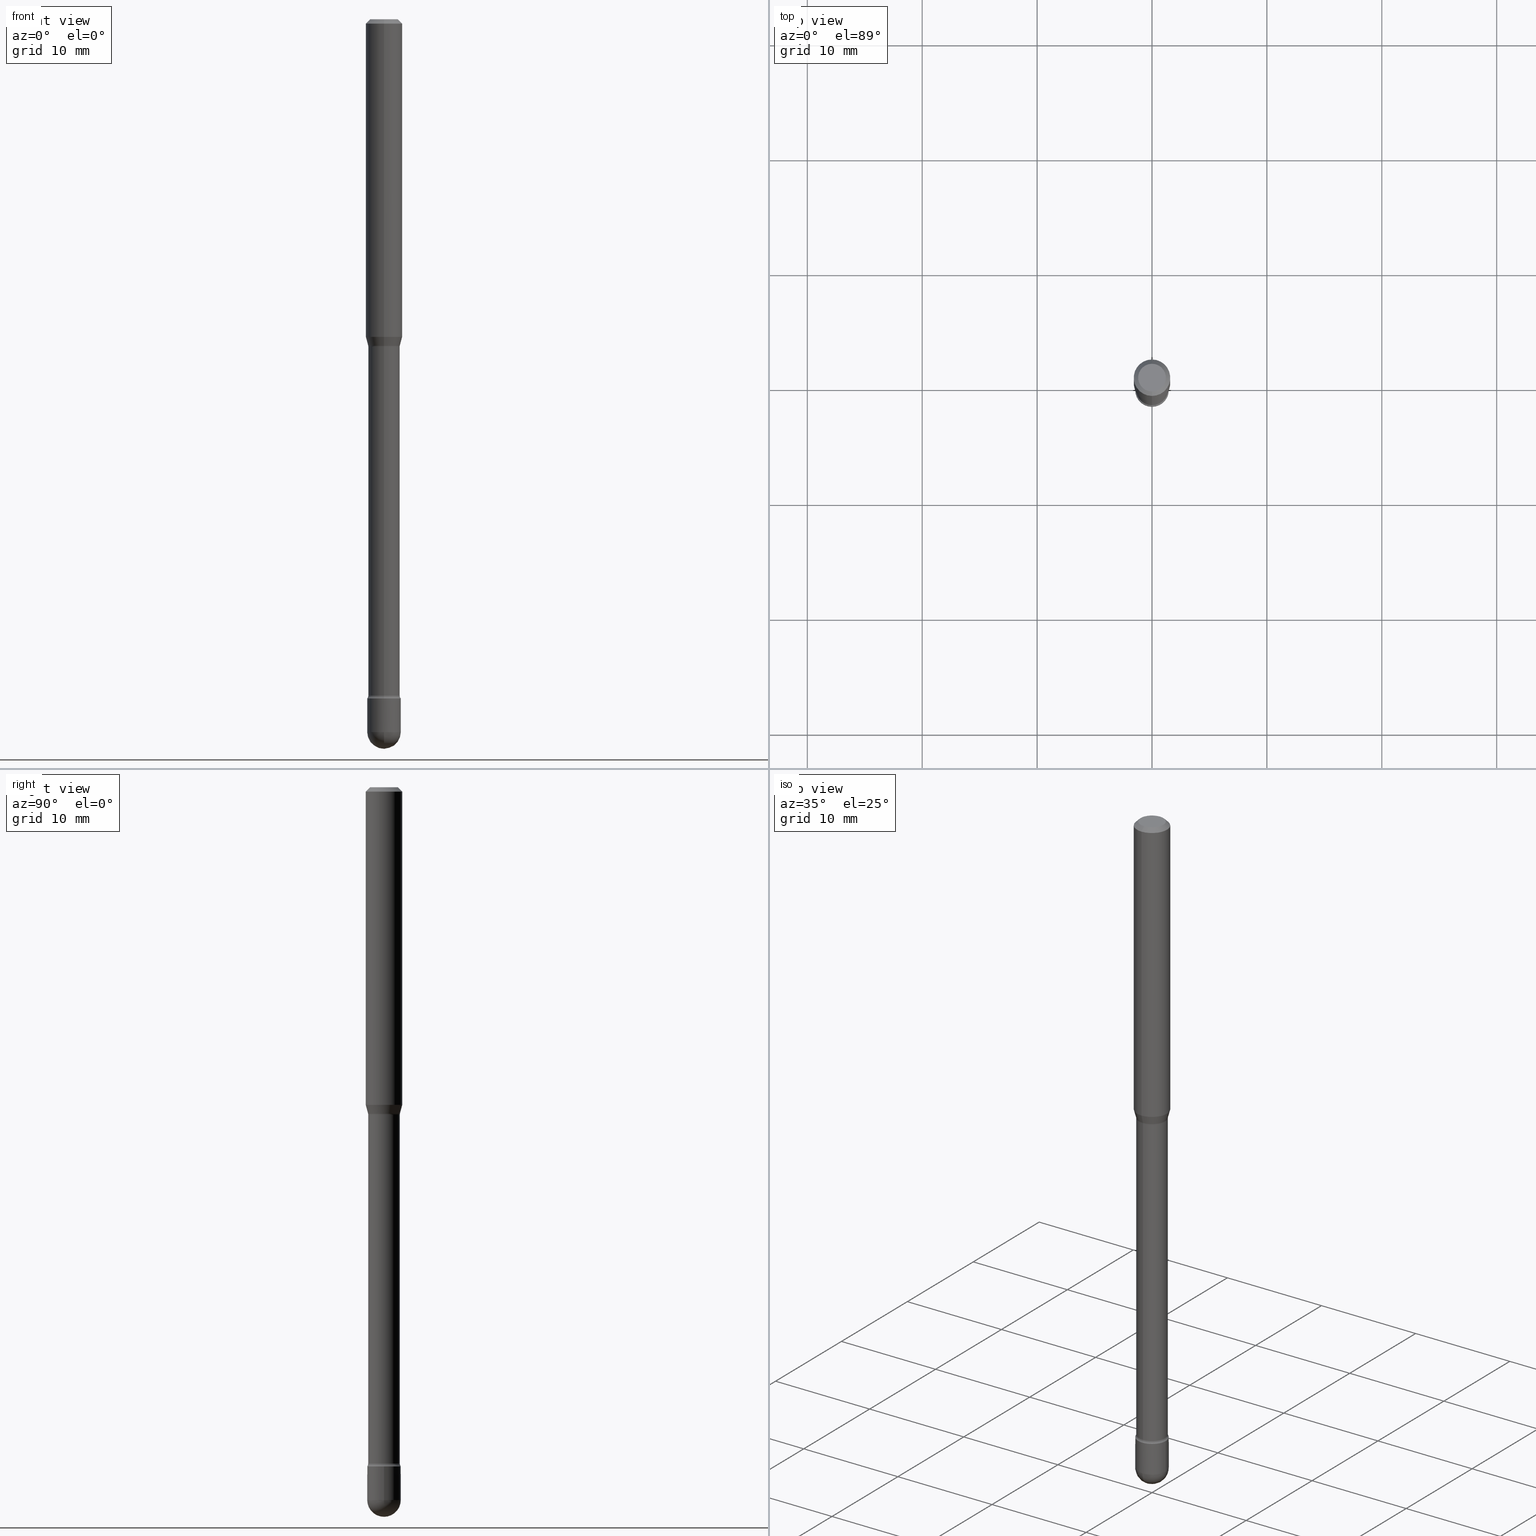
[diagram: canonical four-view strip — front | top / right | iso, engineering-drawing reading convention]
A machine part, canonical four-view strip (front | top / right | iso — engineering-drawing reading convention). The complete STEP part file that produces these views, byte-faithful:
ISO-10303-21;
HEADER;
FILE_DESCRIPTION (( 'STEP AP203' ),
    '1' );
FILE_NAME ('03911.STEP',
    '2024-04-09T21:07:01',
    ( '' ),
    ( '' ),
    'SwSTEP 2.0',
    'SolidWorks 2023',
    '' );
FILE_SCHEMA (( 'CONFIG_CONTROL_DESIGN' ));
ENDSEC;

DATA;
#1 = DIRECTION ( 'NONE',  ( -6.982962677686266711E-15, -1.000000000000000000, 0.000000000000000000 ) ) ;
#2 = DATE_TIME_ROLE ( 'classification_date' ) ;
#3 = APPLICATION_CONTEXT ( 'configuration controlled 3d designs of mechanical parts and assemblies' ) ;
#4 = VECTOR ( 'NONE', #488, 39.37007874015748854 ) ;
#5 = PERSON_AND_ORGANIZATION ( #285, #44 ) ;
#6 = COORDINATED_UNIVERSAL_TIME_OFFSET ( 5, 0, .BEHIND. ) ;
#7 = DIRECTION ( 'NONE',  ( -2.445497940252363543E-29, 3.491439617200668170E-15, 1.000000000000000000 ) ) ;
#8 = CARTESIAN_POINT ( 'NONE',  ( 2.743754344068948832E-29, -3.917354033082401123E-15, -1.121974787463811296 ) ) ;
#9 = EDGE_CURVE ( 'NONE', #376, #514, #35, .T. ) ;
#10 = CARTESIAN_POINT ( 'NONE',  ( 2.023764711495636617E-45, -2.888932392312249405E-31, -8.274901384956310238E-17 ) ) ;
#11 = CIRCLE ( 'NONE', #19, 0.05405000000000000082 ) ;
#12 = DIRECTION ( 'NONE',  ( -6.982962677686266711E-15, -1.000000000000000000, 3.491439617200668959E-15 ) ) ;
#13 = CARTESIAN_POINT ( 'NONE',  ( 5.667268681845476108E-29, -8.091164613728519785E-15, -2.317429341715430802 ) ) ;
#14 = ORIENTED_EDGE ( 'NONE', *, *, #108, .F. ) ;
#15 = DIRECTION ( 'NONE',  ( -2.445497940252363543E-29, 3.491439617200668170E-15, 1.000000000000000000 ) ) ;
#16 = ORIENTED_EDGE ( 'NONE', *, *, #229, .T. ) ;
#17 = EDGE_CURVE ( 'NONE', #114, #343, #173, .T. ) ;
#18 = VECTOR ( 'NONE', #231, 39.37007874015748143 ) ;
#19 = AXIS2_PLACEMENT_3D ( 'NONE', #417, #102, #235 ) ;
#20 = ORIENTED_EDGE ( 'NONE', *, *, #176, .T. ) ;
#21 = AXIS2_PLACEMENT_3D ( 'NONE', #161, #470, #347 ) ;
#22 = ORIENTED_EDGE ( 'NONE', *, *, #141, .T. ) ;
#23 = DIRECTION ( 'NONE',  ( -6.982962677686265922E-15, -1.000000000000000000, 2.503475335454092652E-15 ) ) ;
#24 = ORIENTED_EDGE ( 'NONE', *, *, #543, .T. ) ;
#25 = EDGE_LOOP ( 'NONE', ( #520, #346, #246, #245 ) ) ;
#26 = DIRECTION ( 'NONE',  ( -1.000000000000000000, 6.982962677686266711E-15, -4.883557194083112901E-29 ) ) ;
#27 = ORIENTED_EDGE ( 'NONE', *, *, #141, .F. ) ;
#28 = PERSON_AND_ORGANIZATION_ROLE ( 'creator' ) ;
#29 = ORIENTED_EDGE ( 'NONE', *, *, #187, .F. ) ;
#30 = CYLINDRICAL_SURFACE ( 'NONE', #288, 0.05405000000000007021 ) ;
#31 = CARTESIAN_POINT ( 'NONE',  ( 2.023764711495636617E-45, -2.888932392312249405E-31, -8.274901384956310238E-17 ) ) ;
#32 = EDGE_LOOP ( 'NONE', ( #125, #394, #559, #459 ) ) ;
#33 = AXIS2_PLACEMENT_3D ( 'NONE', #174, #489, #563 ) ;
#34 = CC_DESIGN_APPROVAL ( #330, ( #371 ) ) ;
#35 = CIRCLE ( 'NONE', #103, 0.06250000000000000000 ) ;
#36 = ORIENTED_EDGE ( 'NONE', *, *, #176, .F. ) ;
#37 = CYLINDRICAL_SURFACE ( 'NONE', #434, 0.05750000000000000250 ) ;
#38 = PLANE ( 'NONE',  #277 ) ;
#39 = ORIENTED_EDGE ( 'NONE', *, *, #454, .F. ) ;
#40 = EDGE_CURVE ( 'NONE', #190, #114, #441, .T. ) ;
#41 = CARTESIAN_POINT ( 'NONE',  ( 3.316907271900976096E-16, 0.04749999999999999362, 3.181881070380980226E-17 ) ) ;
#42 = DIRECTION ( 'NONE',  ( -1.000000000000000000, 6.982962677686265922E-15, -4.883557194083112340E-29 ) ) ;
#43 = AXIS2_PLACEMENT_3D ( 'NONE', #446, #265, #445 ) ;
#44 = ORGANIZATION ( 'UNSPECIFIED', 'UNSPECIFIED', '' ) ;
#45 = CARTESIAN_POINT ( 'NONE',  ( 0.000000000000000000, 0.000000000000000000, 0.000000000000000000 ) ) ;
#46 = DIRECTION ( 'NONE',  ( 2.445497940252363824E-29, -3.491439617200667775E-15, -1.000000000000000000 ) ) ;
#47 = AXIS2_PLACEMENT_3D ( 'NONE', #335, #513, #194 ) ;
#48 =( GEOMETRIC_REPRESENTATION_CONTEXT ( 3 ) GLOBAL_UNCERTAINTY_ASSIGNED_CONTEXT ( ( #123 ) ) GLOBAL_UNIT_ASSIGNED_CONTEXT ( ( #532, #184, #321 ) ) REPRESENTATION_CONTEXT ( 'NONE', 'WORKASPACE' ) );
#49 = APPLICATION_CONTEXT ( 'configuration controlled 3d designs of mechanical parts and assemblies' ) ;
#50 = CARTESIAN_POINT ( 'NONE',  ( 3.668246910378565599E-31, -5.237159425801031048E-17, -0.01500000000000008271 ) ) ;
#51 = DIRECTION ( 'NONE',  ( 6.982962677686265922E-15, 1.000000000000000000, -3.483106191921935554E-15 ) ) ;
#52 = ADVANCED_FACE ( 'NONE', ( #342 ), #507, .T. ) ;
#53 = ADVANCED_FACE ( 'NONE', ( #333 ), #172, .F. ) ;
#54 = PLANE ( 'NONE',  #112 ) ;
#55 = DIRECTION ( 'NONE',  ( 1.000000000000000000, 0.000000000000000000, 0.000000000000000000 ) ) ;
#56 = CIRCLE ( 'NONE', #43, 0.05750000000000000250 ) ;
#57 = CARTESIAN_POINT ( 'NONE',  ( 4.364351673553919652E-16, 0.06249999999999995143, -0.01500000000000030129 ) ) ;
#58 = PERSON_AND_ORGANIZATION_ROLE ( 'design_owner' ) ;
#59 = EDGE_LOOP ( 'NONE', ( #385, #466, #14, #508, #505 ) ) ;
#60 = DIMENSIONAL_EXPONENTS ( 1.000000000000000000, 0.000000000000000000, 0.000000000000000000, 0.000000000000000000, 0.000000000000000000, 0.000000000000000000, 0.000000000000000000 ) ;
#61 = ORIENTED_EDGE ( 'NONE', *, *, #78, .F. ) ;
#62 = VECTOR ( 'NONE', #414, 39.37007874015748143 ) ;
#63 = CARTESIAN_POINT ( 'NONE',  ( -4.287811248607203282E-16, -0.06250000000000005551, -0.01499999999999986587 ) ) ;
#64 = DIRECTION ( 'NONE',  ( -2.445468806185136597E-29, 3.491481338843145583E-15, 1.000000000000000000 ) ) ;
#65 = DIRECTION ( 'NONE',  ( -2.445497940252363543E-29, 3.491439617200668170E-15, 1.000000000000000000 ) ) ;
#66 = EDGE_CURVE ( 'NONE', #239, #254, #357, .T. ) ;
#67 = CARTESIAN_POINT ( 'NONE',  ( 5.973057559107196227E-29, -8.527943170124383355E-15, -2.442499999999999893 ) ) ;
#68 = ORIENTED_EDGE ( 'NONE', *, *, #134, .F. ) ;
#69 = CARTESIAN_POINT ( 'NONE',  ( -4.364351673553916201E-16, -0.06250000000000000000, 6.962883749662878485E-16 ) ) ;
#70 = VERTEX_POINT ( 'NONE', #171 ) ;
#71 = PRODUCT_RELATED_PRODUCT_CATEGORY ( 'detail', '', ( #313 ) ) ;
#72 = VERTEX_POINT ( 'NONE', #219 ) ;
#73 = CARTESIAN_POINT ( 'NONE',  ( -1.169113584055446105E-44, 1.669184350826100908E-30, 4.780733988912460139E-16 ) ) ;
#74 = CARTESIAN_POINT ( 'NONE',  ( 3.840629472727447874E-16, 0.04749999999999999362, -2.485923956665948360E-16 ) ) ;
#75 = EDGE_LOOP ( 'NONE', ( #282, #20, #418, #539 ) ) ;
#76 = CONICAL_SURFACE ( 'NONE', #447, 0.06250000000000000000, 0.7853981633974483900 ) ;
#77 = CONICAL_SURFACE ( 'NONE', #484, 0.05456111260566398613, 0.2617993877991491303 ) ;
#78 = EDGE_CURVE ( 'NONE', #287, #243, #352, .T. ) ;
#79 = DIRECTION ( 'NONE',  ( -2.445497940252363543E-29, 3.491439617200668170E-15, 1.000000000000000000 ) ) ;
#80 = EDGE_LOOP ( 'NONE', ( #304, #425 ) ) ;
#81 = DIRECTION ( 'NONE',  ( -6.982962677686266711E-15, -1.000000000000000000, 3.491439617200668959E-15 ) ) ;
#82 = CARTESIAN_POINT ( 'NONE',  ( -0.05750000000000000250, -7.917748049744133834E-15, -2.442499999999999893 ) ) ;
#83 = CIRCLE ( 'NONE', #521, 0.01499999999999999424 ) ;
#84 = VECTOR ( 'NONE', #121, 39.37007874015748143 ) ;
#85 = DIRECTION ( 'NONE',  ( -2.445497940252363543E-29, 3.491439617200668170E-15, 1.000000000000000000 ) ) ;
#86 = DIRECTION ( 'NONE',  ( -2.445497940252363824E-29, 3.491439617200667775E-15, 1.000000000000000000 ) ) ;
#87 = FACE_OUTER_BOUND ( 'NONE', #80, .T. ) ;
#88 = CALENDAR_DATE ( 2024, 9, 4 ) ;
#89 = AXIS2_PLACEMENT_3D ( 'NONE', #13, #140, #324 ) ;
#90 = EDGE_CURVE ( 'NONE', #281, #70, #204, .T. ) ;
#91 = CIRCLE ( 'NONE', #370, 0.05750000000000007189 ) ;
#92 = CARTESIAN_POINT ( 'NONE',  ( 3.840483486783346000E-16, 0.05405000000000007021, 2.893610875815497126E-16 ) ) ;
#93 = EDGE_CURVE ( 'NONE', #339, #254, #525, .T. ) ;
#94 = CARTESIAN_POINT ( 'NONE',  ( 5.667201165703240905E-29, -8.091261300686981315E-15, -2.317429341715430802 ) ) ;
#95 = CALENDAR_DATE ( 2024, 9, 4 ) ;
#96 = DIRECTION ( 'NONE',  ( -2.445497940252363824E-29, 3.491439617200667775E-15, 1.000000000000000000 ) ) ;
#97 = DIRECTION ( 'NONE',  ( 2.445497940252363543E-29, -3.491439617200668170E-15, -1.000000000000000000 ) ) ;
#98 = DIRECTION ( 'NONE',  ( -2.445497940252363543E-29, 3.491439617200668170E-15, 1.000000000000000000 ) ) ;
#99 = DIRECTION ( 'NONE',  ( -2.445468806185136597E-29, 3.491481338843145583E-15, 1.000000000000000000 ) ) ;
#100 = AXIS2_PLACEMENT_3D ( 'NONE', #10, #7, #12 ) ;
#101 = AXIS2_PLACEMENT_3D ( 'NONE', #124, #116, #422 ) ;
#102 = DIRECTION ( 'NONE',  ( -2.445497940252363543E-29, 3.491439617200668170E-15, 1.000000000000000000 ) ) ;
#103 = AXIS2_PLACEMENT_3D ( 'NONE', #107, #213, #196 ) ;
#104 = ORIENTED_EDGE ( 'NONE', *, *, #90, .T. ) ;
#105 = CARTESIAN_POINT ( 'NONE',  ( 2.743787031757833688E-29, -3.917307222451449411E-15, -1.121974787463811074 ) ) ;
#106 = ORIENTED_EDGE ( 'NONE', *, *, #93, .F. ) ;
#107 = CARTESIAN_POINT ( 'NONE',  ( 3.668246910378565599E-31, -5.237159425801031048E-17, -0.01500000000000008271 ) ) ;
#108 = EDGE_CURVE ( 'NONE', #254, #339, #56, .T. ) ;
#109 = ORIENTED_EDGE ( 'NONE', *, *, #443, .F. ) ;
#110 = ADVANCED_FACE ( 'NONE', ( #355 ), #129, .T. ) ;
#111 = CARTESIAN_POINT ( 'NONE',  ( 2.734292910132389622E-29, -3.903752456435094902E-15, -1.118092501787273374 ) ) ;
#112 = AXIS2_PLACEMENT_3D ( 'NONE', #226, #372, #533 ) ;
#113 = CARTESIAN_POINT ( 'NONE',  ( 4.906297590424068657E-16, 0.06904999999999206217, -2.317429341715430802 ) ) ;
#114 = VERTEX_POINT ( 'NONE', #82 ) ;
#115 = VERTEX_POINT ( 'NONE', #259 ) ;
#116 = DIRECTION ( 'NONE',  ( -2.445468806185136597E-29, 3.491481338843145583E-15, 1.000000000000000000 ) ) ;
#117 = ADVANCED_FACE ( 'NONE', ( #87 ), #127, .F. ) ;
#118 = DIRECTION ( 'NONE',  ( 6.982962677686266711E-15, 1.000000000000000000, -4.751039988981321814E-15 ) ) ;
#119 = ORIENTED_EDGE ( 'NONE', *, *, #329, .T. ) ;
#120 = CARTESIAN_POINT ( 'NONE',  ( -3.774291327288869168E-16, -0.05405000000000822341, -2.317429341715430358 ) ) ;
#121 = DIRECTION ( 'NONE',  ( -2.445497940252363824E-29, 3.491439617200667775E-15, 1.000000000000000000 ) ) ;
#122 = ORIENTED_EDGE ( 'NONE', *, *, #293, .T. ) ;
#123 = UNCERTAINTY_MEASURE_WITH_UNIT (LENGTH_MEASURE( 1.000000000000000082E-05 ), #532, 'distance_accuracy_value', 'NONE');
#124 = CARTESIAN_POINT ( 'NONE',  ( 0.000000000000000000, 0.000000000000000000, 0.000000000000000000 ) ) ;
#125 = ORIENTED_EDGE ( 'NONE', *, *, #424, .F. ) ;
#126 = CIRCLE ( 'NONE', #100, 0.04749999999999999362 ) ;
#127 = PLANE ( 'NONE',  #462 ) ;
#128 = DIRECTION ( 'NONE',  ( 1.000000000000000000, -6.982962677686273810E-15, 0.000000000000000000 ) ) ;
#129 = CYLINDRICAL_SURFACE ( 'NONE', #276, 0.06250000000000000000 ) ;
#130 = FACE_OUTER_BOUND ( 'NONE', #461, .T. ) ;
#131 = AXIS2_PLACEMENT_3D ( 'NONE', #8, #135, #485 ) ;
#132 = CC_DESIGN_SECURITY_CLASSIFICATION ( #448, ( #361 ) ) ;
#133 = DIRECTION ( 'NONE',  ( -6.982962677686265922E-15, -1.000000000000000000, 4.751039988981327336E-15 ) ) ;
#134 = EDGE_CURVE ( 'NONE', #70, #281, #369, .T. ) ;
#135 = DIRECTION ( 'NONE',  ( -2.445497940252363543E-29, 3.491439617200668170E-15, 1.000000000000000000 ) ) ;
#136 = AXIS2_PLACEMENT_3D ( 'NONE', #546, #397, #118 ) ;
#137 = CONICAL_SURFACE ( 'NONE', #252, 0.05456111260566398613, 0.2617993877991491303 ) ;
#138 = CARTESIAN_POINT ( 'NONE',  ( 2.661836887426760924E-29, -3.800306927401807110E-15, -1.088464170676043397 ) ) ;
#139 = LENGTH_MEASURE_WITH_UNIT ( LENGTH_MEASURE( 0.02539999999999999897 ), #233 );
#140 = DIRECTION ( 'NONE',  ( -2.445497940252363543E-29, 3.491439617200668170E-15, 1.000000000000000000 ) ) ;
#141 = EDGE_CURVE ( 'NONE', #72, #376, #306, .T. ) ;
#142 = CARTESIAN_POINT ( 'NONE',  ( 6.116130618544232584E-29, -8.725182487560315771E-15, -2.500000000000000000 ) ) ;
#143 = ORIENTED_EDGE ( 'NONE', *, *, #93, .T. ) ;
#144 = CARTESIAN_POINT ( 'NONE',  ( 0.05750000000000000250, -8.727830476773152219E-15, -2.442499999999999893 ) ) ;
#145 = ORIENTED_EDGE ( 'NONE', *, *, #312, .F. ) ;
#146 = DIRECTION ( 'NONE',  ( -6.982962677686265922E-15, -1.000000000000000000, 4.370956789862821150E-15 ) ) ;
#147 = DIRECTION ( 'NONE',  ( -2.445468806185136597E-29, 3.491481338843145583E-15, 1.000000000000000000 ) ) ;
#148 = EDGE_CURVE ( 'NONE', #514, #376, #192, .T. ) ;
#149 = ORIENTED_EDGE ( 'NONE', *, *, #443, .T. ) ;
#150 = CYLINDRICAL_SURFACE ( 'NONE', #47, 0.06250000000000000000 ) ;
#151 = EDGE_LOOP ( 'NONE', ( #160, #291, #122, #162 ) ) ;
#152 = EDGE_LOOP ( 'NONE', ( #242, #149, #104, #145 ) ) ;
#153 = AXIS2_PLACEMENT_3D ( 'NONE', #94, #15, #415 ) ;
#154 = DIRECTION ( 'NONE',  ( -7.105427357601000281E-15, -1.000000000000000000, 0.000000000000000000 ) ) ;
#155 = AXIS2_PLACEMENT_3D ( 'NONE', #215, #522, #128 ) ;
#156 = DIRECTION ( 'NONE',  ( 1.000000000000000000, -6.982962677686273810E-15, 0.000000000000000000 ) ) ;
#157 = VERTEX_POINT ( 'NONE', #142 ) ;
#158 = CARTESIAN_POINT ( 'NONE',  ( 5.973057559107196227E-29, -8.527943170124383355E-15, -2.442499999999999893 ) ) ;
#159 = ORIENTED_EDGE ( 'NONE', *, *, #365, .F. ) ;
#160 = ORIENTED_EDGE ( 'NONE', *, *, #402, .F. ) ;
#161 = CARTESIAN_POINT ( 'NONE',  ( 5.973057559107196227E-29, -8.527943170124383355E-15, -2.442499999999999893 ) ) ;
#162 = ORIENTED_EDGE ( 'NONE', *, *, #9, .T. ) ;
#163 = DESIGN_CONTEXT ( 'detailed design', #49, 'design' ) ;
#164 = AXIS2_PLACEMENT_3D ( 'NONE', #398, #311, #262 ) ;
#165 = LOCAL_TIME ( 17, 7, 1.000000000000000000, #309 ) ;
#166 = DIRECTION ( 'NONE',  ( -2.445468806185136877E-29, 3.491481338843145188E-15, 1.000000000000000000 ) ) ;
#167 = CARTESIAN_POINT ( 'NONE',  ( -0.05750000000000000250, 4.085620730620576246E-16, -2.828387676896570712E-30 ) ) ;
#168 = EDGE_CURVE ( 'NONE', #431, #115, #83, .T. ) ;
#169 = CARTESIAN_POINT ( 'NONE',  ( 0.05750000000000000250, -4.015203539669603161E-16, 2.803801646082662941E-30 ) ) ;
#170 = APPROVAL_ROLE ( '' ) ;
#171 = CARTESIAN_POINT ( 'NONE',  ( -4.015203539669034688E-16, -0.05750000000000813488, -2.326999999999999957 ) ) ;
#172 = TOROIDAL_SURFACE ( 'NONE', #131, 0.06905000000000000027, 0.01499999999999998904 ) ;
#173 = CIRCLE ( 'NONE', #501, 0.05750000000000000250 ) ;
#174 = CARTESIAN_POINT ( 'NONE',  ( 5.690673706967250550E-29, -8.124579989225955458E-15, -2.326999999999999957 ) ) ;
#175 = SECURITY_CLASSIFICATION_LEVEL ( 'unclassified' ) ;
#176 = EDGE_CURVE ( 'NONE', #294, #115, #538, .T. ) ;
#177 = DATE_AND_TIME ( #95, #269 ) ;
#178 = DIRECTION ( 'NONE',  ( -2.445497940252363543E-29, 3.491439617200668170E-15, 1.000000000000000000 ) ) ;
#179 = APPROVAL_STATUS ( 'not_yet_approved' ) ;
#180 = CC_DESIGN_DATE_AND_TIME_ASSIGNMENT ( #266, #2, ( #448 ) ) ;
#181 = FACE_OUTER_BOUND ( 'NONE', #152, .T. ) ;
#182 = PERSON_AND_ORGANIZATION ( #285, #44 ) ;
#183 = LOCAL_TIME ( 17, 7, 1.000000000000000000, #221 ) ;
#184 =( NAMED_UNIT ( * ) PLANE_ANGLE_UNIT ( ) SI_UNIT ( $, .RADIAN. ) );
#185 = MECHANICAL_CONTEXT ( 'NONE', #3, 'mechanical' ) ;
#186 = DIRECTION ( 'NONE',  ( -2.445497940252363543E-29, 3.491439617200668170E-15, 1.000000000000000000 ) ) ;
#187 = EDGE_CURVE ( 'NONE', #334, #550, #126, .T. ) ;
#188 = CARTESIAN_POINT ( 'NONE',  ( 3.963052108702531075E-16, 0.05404999999999203497, -2.317429341715430802 ) ) ;
#189 = APPLICATION_PROTOCOL_DEFINITION ( 'international standard', 'config_control_design', 1994, #49 ) ;
#190 = VERTEX_POINT ( 'NONE', #491 ) ;
#191 = ORIENTED_EDGE ( 'NONE', *, *, #424, .T. ) ;
#192 = CIRCLE ( 'NONE', #337, 0.06250000000000000000 ) ;
#193 = FACE_OUTER_BOUND ( 'NONE', #208, .T. ) ;
#194 = DIRECTION ( 'NONE',  ( -6.982962677686265922E-15, -1.000000000000000000, 3.491439617200668564E-15 ) ) ;
#195 = ADVANCED_FACE ( 'NONE', ( #326 ), #216, .F. ) ;
#196 = DIRECTION ( 'NONE',  ( -6.982962677686265922E-15, -1.000000000000000000, 3.483106191921935554E-15 ) ) ;
#197 = ORIENTED_EDGE ( 'NONE', *, *, #504, .F. ) ;
#198 = CARTESIAN_POINT ( 'NONE',  ( 3.876800221694610846E-16, 0.05456111260566008647, -1.118092501787273596 ) ) ;
#199 = EDGE_LOOP ( 'NONE', ( #39, #191, #327, #548 ) ) ;
#200 = EDGE_LOOP ( 'NONE', ( #109, #159, #463, #381 ) ) ;
#201 = FACE_OUTER_BOUND ( 'NONE', #237, .T. ) ;
#202 = ORIENTED_EDGE ( 'NONE', *, *, #148, .F. ) ;
#203 = ORIENTED_EDGE ( 'NONE', *, *, #273, .T. ) ;
#204 = CIRCLE ( 'NONE', #541, 0.05750000000000000250 ) ;
#205 = DIRECTION ( 'NONE',  ( 7.105427357600997914E-15, 1.000000000000000000, 0.000000000000000000 ) ) ;
#206 = CIRCLE ( 'NONE', #542, 0.01500000000000002720 ) ;
#207 = DIRECTION ( 'NONE',  ( -6.982962677686265922E-15, -1.000000000000000000, 2.503475335454092652E-15 ) ) ;
#208 = EDGE_LOOP ( 'NONE', ( #423, #248, #560, #437 ) ) ;
#209 = CLOSED_SHELL ( 'NONE', ( #472, #377, #227, #52, #438 ) ) ;
#210 = EDGE_LOOP ( 'NONE', ( #433, #349, #469, #553 ) ) ;
#211 = DIRECTION ( 'NONE',  ( -2.445497940252363543E-29, 3.491439617200668170E-15, 1.000000000000000000 ) ) ;
#212 = DIRECTION ( 'NONE',  ( -6.982962677686265922E-15, -1.000000000000000000, 2.503475335454092652E-15 ) ) ;
#213 = DIRECTION ( 'NONE',  ( -2.445497940252363543E-29, 3.491439617200668170E-15, 1.000000000000000000 ) ) ;
#214 = CARTESIAN_POINT ( 'NONE',  ( -3.809982129783619050E-16, -0.05456111260566789273, -1.118092501787273374 ) ) ;
#215 = CARTESIAN_POINT ( 'NONE',  ( 5.973057559107196227E-29, -8.527943170124383355E-15, -2.442499999999999893 ) ) ;
#216 = TOROIDAL_SURFACE ( 'NONE', #350, 0.06905000000000015292, 0.01500000000000002200 ) ;
#217 = ADVANCED_FACE ( 'NONE', ( #407 ), #419, .F. ) ;
#218 = DIRECTION ( 'NONE',  ( -2.445497940252363543E-29, 3.491439617200668170E-15, 1.000000000000000000 ) ) ;
#219 = CARTESIAN_POINT ( 'NONE',  ( 4.440892098500890430E-16, 0.06249999999999618361, -1.088464170676043619 ) ) ;
#220 = DIRECTION ( 'NONE',  ( 6.982962677686265922E-15, 1.000000000000000000, -3.491439617200667775E-15 ) ) ;
#221 = COORDINATED_UNIVERSAL_TIME_OFFSET ( 5, 0, .BEHIND. ) ;
#222 = AXIS2_PLACEMENT_3D ( 'NONE', #138, #186, #322 ) ;
#223 = PERSON_AND_ORGANIZATION_ROLE ( 'creator' ) ;
#224 = DATE_TIME_ROLE ( 'creation_date' ) ;
#225 = DATE_AND_TIME ( #449, #310 ) ;
#226 = CARTESIAN_POINT ( 'NONE',  ( 5.690605911992812897E-29, -8.124677075487999464E-15, -2.326999999999999957 ) ) ;
#227 = ADVANCED_FACE ( 'NONE', ( #363 ), #54, .T. ) ;
#228 = PRODUCT_DEFINITION_SHAPE ( 'NONE', 'NONE',  #371 ) ;
#229 = EDGE_CURVE ( 'NONE', #72, #243, #268, .T. ) ;
#230 = VECTOR ( 'NONE', #387, 39.37007874015748143 ) ;
#231 = DIRECTION ( 'NONE',  ( 4.937700262164548042E-15, 0.7071067811865451302, -0.7071067811865499042 ) ) ;
#232 = PERSON_AND_ORGANIZATION ( #285, #44 ) ;
#233 =( LENGTH_UNIT ( ) NAMED_UNIT ( * ) SI_UNIT ( $, .METRE. ) );
#234 = DIRECTION ( 'NONE',  ( 7.105427357601001859E-15, 1.000000000000000000, 0.000000000000000000 ) ) ;
#235 = DIRECTION ( 'NONE',  ( -6.982962677686265922E-15, -1.000000000000000000, 2.527148930309216761E-15 ) ) ;
#236 = ADVANCED_FACE ( 'NONE', ( #323 ), #325, .T. ) ;
#237 = EDGE_LOOP ( 'NONE', ( #427, #22, #202, #299 ) ) ;
#238 = AXIS2_PLACEMENT_3D ( 'NONE', #105, #79, #344 ) ;
#239 = VERTEX_POINT ( 'NONE', #144 ) ;
#240 = AXIS2_PLACEMENT_3D ( 'NONE', #31, #482, #81 ) ;
#241 = CARTESIAN_POINT ( 'NONE',  ( 4.158846160097752610E-16, 0.05456111260566008647, -1.118092501787273596 ) ) ;
#242 = ORIENTED_EDGE ( 'NONE', *, *, #305, .F. ) ;
#243 = VERTEX_POINT ( 'NONE', #497 ) ;
#244 = DIRECTION ( 'NONE',  ( 1.000000000000000000, -7.105427357601001070E-15, 4.926314997599322970E-29 ) ) ;
#245 = ORIENTED_EDGE ( 'NONE', *, *, #481, .F. ) ;
#246 = ORIENTED_EDGE ( 'NONE', *, *, #258, .T. ) ;
#247 = DIRECTION ( 'NONE',  ( -2.445497940252363824E-29, 3.491439617200667775E-15, 1.000000000000000000 ) ) ;
#248 = ORIENTED_EDGE ( 'NONE', *, *, #540, .T. ) ;
#249 = ORIENTED_EDGE ( 'NONE', *, *, #402, .T. ) ;
#250 = CIRCLE ( 'NONE', #267, 0.05750000000000000250 ) ;
#251 = CARTESIAN_POINT ( 'NONE',  ( -0.05750000000000000250, -7.917748049744133834E-15, -2.326999999999999957 ) ) ;
#252 = AXIS2_PLACEMENT_3D ( 'NONE', #478, #440, #207 ) ;
#253 = CARTESIAN_POINT ( 'NONE',  ( 2.734292910132389622E-29, -3.903752456435094902E-15, -1.118092501787273374 ) ) ;
#254 = VERTEX_POINT ( 'NONE', #496 ) ;
#255 = CC_DESIGN_PERSON_AND_ORGANIZATION_ASSIGNMENT ( #182, #28, ( #361 ) ) ;
#256 = DIRECTION ( 'NONE',  ( -6.982962677686265922E-15, -1.000000000000000000, 3.491439617200667381E-15 ) ) ;
#257 = COORDINATED_UNIVERSAL_TIME_OFFSET ( 5, 0, .BEHIND. ) ;
#258 = EDGE_CURVE ( 'NONE', #115, #468, #11, .T. ) ;
#259 = CARTESIAN_POINT ( 'NONE',  ( 3.840483486783912008E-16, 0.05404999999999607341, -1.121974787463811296 ) ) ;
#260 = AXIS2_PLACEMENT_3D ( 'NONE', #429, #519, #146 ) ;
#261 = CARTESIAN_POINT ( 'NONE',  ( -4.364351673553912750E-16, -0.06250000000000005551, -0.01499999999999986587 ) ) ;
#262 = DIRECTION ( 'NONE',  ( 1.000000000000000000, -6.982962677686273810E-15, 0.000000000000000000 ) ) ;
#263 = CARTESIAN_POINT ( 'NONE',  ( 5.690673706967250550E-29, -8.124579989225955458E-15, -2.326999999999999957 ) ) ;
#264 = PERSON_AND_ORGANIZATION_ROLE ( 'classification_officer' ) ;
#265 = DIRECTION ( 'NONE',  ( -2.445468806185136597E-29, 3.491481338843145583E-15, 1.000000000000000000 ) ) ;
#266 = DATE_AND_TIME ( #88, #165 ) ;
#267 = AXIS2_PLACEMENT_3D ( 'NONE', #368, #99, #320 ) ;
#268 = CIRCLE ( 'NONE', #222, 0.06250000000000000000 ) ;
#269 = LOCAL_TIME ( 17, 7, 1.000000000000000000, #6 ) ;
#270 = COORDINATED_UNIVERSAL_TIME_OFFSET ( 5, 0, .BEHIND. ) ;
#271 = ADVANCED_FACE ( 'NONE', ( #494 ), #76, .T. ) ;
#272 = ADVANCED_FACE ( 'NONE', ( #181 ), #286, .F. ) ;
#273 = EDGE_CURVE ( 'NONE', #343, #239, #250, .T. ) ;
#274 = CARTESIAN_POINT ( 'NONE',  ( 0.000000000000000000, 0.000000000000000000, 0.000000000000000000 ) ) ;
#275 = CARTESIAN_POINT ( 'NONE',  ( 4.085620730621145212E-16, 0.05749999999999188399, -2.327000000000000401 ) ) ;
#276 = AXIS2_PLACEMENT_3D ( 'NONE', #480, #85, #359 ) ;
#277 = AXIS2_PLACEMENT_3D ( 'NONE', #308, #86, #430 ) ;
#278 = PERSON_AND_ORGANIZATION ( #285, #44 ) ;
#279 = CLOSED_SHELL ( 'NONE', ( #217, #386, #272, #236, #367, #523, #564, #110, #271, #117, #528, #195, #338, #53 ) ) ;
#280 = CARTESIAN_POINT ( 'NONE',  ( -4.821735728941810259E-16, -0.06905000000000824367, -2.317429341715430358 ) ) ;
#281 = VERTEX_POINT ( 'NONE', #275 ) ;
#282 = ORIENTED_EDGE ( 'NONE', *, *, #365, .T. ) ;
#283 = CC_DESIGN_PERSON_AND_ORGANIZATION_ASSIGNMENT ( #490, #264, ( #448 ) ) ;
#284 = FACE_OUTER_BOUND ( 'NONE', #510, .T. ) ;
#285 = PERSON ( 'UNSPECIFIED', 'UNSPECIFIED', 'UNSPECIFIED', ('UNSPECIFIED'), ('UNSPECIFIED'), ('UNSPECIFIED') ) ;
#286 = TOROIDAL_SURFACE ( 'NONE', #153, 0.06905000000000015292, 0.01500000000000002200 ) ;
#287 = VERTEX_POINT ( 'NONE', #535 ) ;
#288 = AXIS2_PLACEMENT_3D ( 'NONE', #464, #65, #552 ) ;
#289 = CARTESIAN_POINT ( 'NONE',  ( 5.973057559107196227E-29, -8.527943170124383355E-15, -2.442499999999999893 ) ) ;
#290 = DIRECTION ( 'NONE',  ( 1.000000000000000000, -6.982962677686273810E-15, 0.000000000000000000 ) ) ;
#291 = ORIENTED_EDGE ( 'NONE', *, *, #479, .F. ) ;
#292 = FACE_OUTER_BOUND ( 'NONE', #59, .T. ) ;
#293 = EDGE_CURVE ( 'NONE', #550, #376, #452, .T. ) ;
#294 = VERTEX_POINT ( 'NONE', #188 ) ;
#295 = ORIENTED_EDGE ( 'NONE', *, *, #17, .T. ) ;
#296 = DIRECTION ( 'NONE',  ( -6.982962677686265922E-15, -1.000000000000000000, 5.054297860618420899E-15 ) ) ;
#297 = APPROVAL_ROLE ( '' ) ;
#298 = LINE ( 'NONE', #167, #351 ) ;
#299 = ORIENTED_EDGE ( 'NONE', *, *, #329, .F. ) ;
#300 = APPROVAL ( #179, 'UNSPECIFIED' ) ;
#301 = AXIS2_PLACEMENT_3D ( 'NONE', #73, #382, #256 ) ;
#302 = SPHERICAL_SURFACE ( 'NONE', #379, 0.05750000000000007189 ) ;
#303 = CIRCLE ( 'NONE', #380, 0.01499999999999999424 ) ;
#304 = ORIENTED_EDGE ( 'NONE', *, *, #479, .T. ) ;
#305 = EDGE_CURVE ( 'NONE', #294, #388, #403, .T. ) ;
#306 = LINE ( 'NONE', #375, #483 ) ;
#307 = DIRECTION ( 'NONE',  ( 1.000000000000000000, -6.982962677686265922E-15, 4.876176775795935232E-29 ) ) ;
#308 = CARTESIAN_POINT ( 'NONE',  ( 4.015203539670172127E-16, 0.05749999999999187705, -2.327000000000000401 ) ) ;
#309 = COORDINATED_UNIVERSAL_TIME_OFFSET ( 5, 0, .BEHIND. ) ;
#310 = LOCAL_TIME ( 17, 7, 1.000000000000000000, #270 ) ;
#311 = DIRECTION ( 'NONE',  ( -2.445468806185136597E-29, 3.491481338843145583E-15, 1.000000000000000000 ) ) ;
#312 = EDGE_CURVE ( 'NONE', #388, #70, #409, .T. ) ;
#313 = PRODUCT ( '03911', '03911', '', ( #185 ) ) ;
#314 = APPROVAL_DATE_TIME ( #551, #330 ) ;
#315 = DIRECTION ( 'NONE',  ( 6.982962677686265922E-15, 1.000000000000000000, -3.483106191921935554E-15 ) ) ;
#316 = CALENDAR_DATE ( 2024, 9, 4 ) ;
#317 = CIRCLE ( 'NONE', #554, 0.05405000000000013266 ) ;
#318 = EDGE_CURVE ( 'NONE', #468, #115, #473, .T. ) ;
#319 = DIRECTION ( 'NONE',  ( -2.445497940252363543E-29, 3.491439617200668170E-15, 1.000000000000000000 ) ) ;
#320 = DIRECTION ( 'NONE',  ( 1.000000000000000000, -6.982962677686273810E-15, 0.000000000000000000 ) ) ;
#321 =( NAMED_UNIT ( * ) SI_UNIT ( $, .STERADIAN. ) SOLID_ANGLE_UNIT ( ) );
#322 = DIRECTION ( 'NONE',  ( -6.982962677686265922E-15, -1.000000000000000000, 4.370956789862821150E-15 ) ) ;
#323 = FACE_OUTER_BOUND ( 'NONE', #458, .T. ) ;
#324 = DIRECTION ( 'NONE',  ( -6.982962677686265922E-15, -1.000000000000000000, 5.054297860618420899E-15 ) ) ;
#325 = CONICAL_SURFACE ( 'NONE', #432, 0.06250000000000000000, 0.7853981633974483900 ) ;
#326 = FACE_OUTER_BOUND ( 'NONE', #200, .T. ) ;
#327 = ORIENTED_EDGE ( 'NONE', *, *, #556, .F. ) ;
#328 = DIRECTION ( 'NONE',  ( -1.000000000000000000, 6.982962677686265922E-15, -4.883557194083112340E-29 ) ) ;
#329 = EDGE_CURVE ( 'NONE', #243, #514, #467, .T. ) ;
#330 = APPROVAL ( #537, 'UNSPECIFIED' ) ;
#331 = ORIENTED_EDGE ( 'NONE', *, *, #258, .F. ) ;
#332 = CYLINDRICAL_SURFACE ( 'NONE', #301, 0.05405000000000007021 ) ;
#333 = FACE_OUTER_BOUND ( 'NONE', #210, .T. ) ;
#334 = VERTEX_POINT ( 'NONE', #545 ) ;
#335 = CARTESIAN_POINT ( 'NONE',  ( -1.169113584055446105E-44, 1.669184350826100908E-30, 4.780733988912460139E-16 ) ) ;
#336 = ORIENTED_EDGE ( 'NONE', *, *, #66, .T. ) ;
#337 = AXIS2_PLACEMENT_3D ( 'NONE', #50, #98, #412 ) ;
#338 = ADVANCED_FACE ( 'NONE', ( #284 ), #332, .T. ) ;
#339 = VERTEX_POINT ( 'NONE', #251 ) ;
#340 = CARTESIAN_POINT ( 'NONE',  ( -4.085620730619980656E-16, -0.05750000000000856509, -2.442499999999999893 ) ) ;
#341 = EDGE_CURVE ( 'NONE', #431, #72, #439, .T. ) ;
#342 = FACE_OUTER_BOUND ( 'NONE', #199, .T. ) ;
#343 = VERTEX_POINT ( 'NONE', #340 ) ;
#344 = DIRECTION ( 'NONE',  ( -6.982962677686265922E-15, -1.000000000000000000, 2.527148930309216761E-15 ) ) ;
#345 = CARTESIAN_POINT ( 'NONE',  ( -3.774291327289431725E-16, -0.05405000000000007021, 6.667857102009424138E-16 ) ) ;
#346 = ORIENTED_EDGE ( 'NONE', *, *, #168, .T. ) ;
#347 = DIRECTION ( 'NONE',  ( 6.982962677686265922E-15, 1.000000000000000000, 0.000000000000000000 ) ) ;
#348 = EDGE_CURVE ( 'NONE', #243, #72, #565, .T. ) ;
#349 = ORIENTED_EDGE ( 'NONE', *, *, #413, .F. ) ;
#350 = AXIS2_PLACEMENT_3D ( 'NONE', #450, #178, #534 ) ;
#351 = VECTOR ( 'NONE', #476, 39.37007874015748143 ) ;
#352 = LINE ( 'NONE', #214, #4 ) ;
#353 = CIRCLE ( 'NONE', #531, 0.05456111260566398613 ) ;
#354 = DIRECTION ( 'NONE',  ( -2.445497940252363543E-29, 3.491439617200668170E-15, 1.000000000000000000 ) ) ;
#355 = FACE_OUTER_BOUND ( 'NONE', #557, .T. ) ;
#356 = FACE_OUTER_BOUND ( 'NONE', #383, .T. ) ;
#357 = LINE ( 'NONE', #169, #453 ) ;
#358 = CARTESIAN_POINT ( 'NONE',  ( -4.821735728942093263E-16, -0.06905000000000392768, -1.121974787463811074 ) ) ;
#359 = DIRECTION ( 'NONE',  ( -6.982962677686265922E-15, -1.000000000000000000, 3.491439617200668564E-15 ) ) ;
#360 = SHAPE_DEFINITION_REPRESENTATION ( #228, #444 ) ;
#361 = PRODUCT_DEFINITION_FORMATION_WITH_SPECIFIED_SOURCE ( 'ANY', '', #313, .NOT_KNOWN. ) ;
#362 = CC_DESIGN_PERSON_AND_ORGANIZATION_ASSIGNMENT ( #232, #223, ( #371 ) ) ;
#363 = FACE_OUTER_BOUND ( 'NONE', #517, .T. ) ;
#364 = CARTESIAN_POINT ( 'NONE',  ( 3.668246910378565599E-31, -5.237159425801031048E-17, -0.01500000000000008271 ) ) ;
#365 = EDGE_CURVE ( 'NONE', #388, #294, #317, .T. ) ;
#366 = APPROVAL_ROLE ( '' ) ;
#367 = ADVANCED_FACE ( 'NONE', ( #201 ), #150, .T. ) ;
#368 = CARTESIAN_POINT ( 'NONE',  ( 5.973057559107196227E-29, -8.527943170124383355E-15, -2.442499999999999893 ) ) ;
#369 = CIRCLE ( 'NONE', #33, 0.05750000000000000250 ) ;
#370 = AXIS2_PLACEMENT_3D ( 'NONE', #158, #426, #154 ) ;
#371 = PRODUCT_DEFINITION ( 'UNKNOWN', '', #361, #163 ) ;
#372 = DIRECTION ( 'NONE',  ( -2.438088387897960049E-29, 3.491481338843145188E-15, 1.000000000000000000 ) ) ;
#373 = DIRECTION ( 'NONE',  ( 1.000000000000000000, -7.105427357601001070E-15, 4.926314997599322970E-29 ) ) ;
#374 = PERSON_AND_ORGANIZATION ( #285, #44 ) ;
#375 = CARTESIAN_POINT ( 'NONE',  ( 4.440892098500625669E-16, 0.06250000000000000000, 2.598584228162043273E-16 ) ) ;
#376 = VERTEX_POINT ( 'NONE', #396 ) ;
#377 = ADVANCED_FACE ( 'NONE', ( #506 ), #302, .T. ) ;
#378 = CC_DESIGN_PERSON_AND_ORGANIZATION_ASSIGNMENT ( #278, #58, ( #313 ) ) ;
#379 = AXIS2_PLACEMENT_3D ( 'NONE', #289, #26, #561 ) ;
#380 = AXIS2_PLACEMENT_3D ( 'NONE', #358, #42, #1 ) ;
#381 = ORIENTED_EDGE ( 'NONE', *, *, #134, .T. ) ;
#382 = DIRECTION ( 'NONE',  ( -2.445497940252363543E-29, 3.491439617200668170E-15, 1.000000000000000000 ) ) ;
#383 = EDGE_LOOP ( 'NONE', ( #68, #544 ) ) ;
#384 = DIRECTION ( 'NONE',  ( 1.839019923739592427E-15, 0.2588190451025238481, 0.9659258262890675351 ) ) ;
#385 = ORIENTED_EDGE ( 'NONE', *, *, #40, .T. ) ;
#386 = ADVANCED_FACE ( 'NONE', ( #475 ), #30, .T. ) ;
#387 = DIRECTION ( 'NONE',  ( -4.851104656540964275E-15, -0.7071067811865500152, -0.7071067811865450192 ) ) ;
#388 = VERTEX_POINT ( 'NONE', #120 ) ;
#389 = AXIS2_PLACEMENT_3D ( 'NONE', #67, #147, #156 ) ;
#390 = EDGE_LOOP ( 'NONE', ( #197, #295, #203, #336, #106 ) ) ;
#391 = CC_DESIGN_APPROVAL ( #300, ( #361 ) ) ;
#392 = CARTESIAN_POINT ( 'NONE',  ( 2.734292910132389622E-29, -3.903752456435094902E-15, -1.118092501787273374 ) ) ;
#393 = LINE ( 'NONE', #345, #84 ) ;
#394 = ORIENTED_EDGE ( 'NONE', *, *, #454, .T. ) ;
#395 = ORIENTED_EDGE ( 'NONE', *, *, #148, .T. ) ;
#396 = CARTESIAN_POINT ( 'NONE',  ( 4.440892098500893388E-16, 0.06249999999999993755, -0.01500000000000030129 ) ) ;
#397 = DIRECTION ( 'NONE',  ( -1.000000000000000000, 6.982962677686266711E-15, -4.883557194083112901E-29 ) ) ;
#398 = CARTESIAN_POINT ( 'NONE',  ( 5.690605911992812897E-29, -8.124677075487999464E-15, -2.326999999999999957 ) ) ;
#399 = CC_DESIGN_PERSON_AND_ORGANIZATION_ASSIGNMENT ( #536, #471, ( #361 ) ) ;
#400 = VECTOR ( 'NONE', #384, 39.37007874015748854 ) ;
#401 = APPROVAL_DATE_TIME ( #404, #547 ) ;
#402 = EDGE_CURVE ( 'NONE', #334, #514, #460, .T. ) ;
#403 = CIRCLE ( 'NONE', #89, 0.05405000000000013266 ) ;
#404 = DATE_AND_TIME ( #316, #183 ) ;
#405 = AXIS2_PLACEMENT_3D ( 'NONE', #274, #451, #55 ) ;
#406 = PERSON_AND_ORGANIZATION ( #285, #44 ) ;
#407 = FACE_OUTER_BOUND ( 'NONE', #25, .T. ) ;
#408 = APPROVAL_DATE_TIME ( #225, #300 ) ;
#409 = CIRCLE ( 'NONE', #492, 0.01500000000000002720 ) ;
#410 = CIRCLE ( 'NONE', #21, 0.05750000000000007189 ) ;
#411 = APPLICATION_PROTOCOL_DEFINITION ( 'international standard', 'config_control_design', 1994, #3 ) ;
#412 = DIRECTION ( 'NONE',  ( -6.982962677686265922E-15, -1.000000000000000000, 3.483106191921935554E-15 ) ) ;
#413 = EDGE_CURVE ( 'NONE', #287, #431, #353, .T. ) ;
#414 = DIRECTION ( 'NONE',  ( -2.445497940252363824E-29, 3.491439617200667775E-15, 1.000000000000000000 ) ) ;
#415 = DIRECTION ( 'NONE',  ( -6.982962677686265922E-15, -1.000000000000000000, 3.491439617200668170E-15 ) ) ;
#416 = ORIENTED_EDGE ( 'NONE', *, *, #413, .T. ) ;
#417 = CARTESIAN_POINT ( 'NONE',  ( 2.743787031757833688E-29, -3.917307222451449411E-15, -1.121974787463811074 ) ) ;
#418 = ORIENTED_EDGE ( 'NONE', *, *, #318, .F. ) ;
#419 = TOROIDAL_SURFACE ( 'NONE', #530, 0.06905000000000000027, 0.01499999999999998904 ) ;
#420 = APPROVAL_PERSON_ORGANIZATION ( #374, #330, #297 ) ;
#421 = ORIENTED_EDGE ( 'NONE', *, *, #305, .T. ) ;
#422 = DIRECTION ( 'NONE',  ( 1.000000000000000000, -6.982962677686265922E-15, 4.876176775795935232E-29 ) ) ;
#423 = ORIENTED_EDGE ( 'NONE', *, *, #341, .F. ) ;
#424 = EDGE_CURVE ( 'NONE', #157, #190, #410, .T. ) ;
#425 = ORIENTED_EDGE ( 'NONE', *, *, #187, .T. ) ;
#426 = DIRECTION ( 'NONE',  ( -1.000000000000000000, 7.105427357601001070E-15, -4.926315508542082329E-29 ) ) ;
#427 = ORIENTED_EDGE ( 'NONE', *, *, #348, .T. ) ;
#428 = ORIENTED_EDGE ( 'NONE', *, *, #348, .F. ) ;
#429 = CARTESIAN_POINT ( 'NONE',  ( 2.661836887426760924E-29, -3.800306927401807110E-15, -1.088464170676043397 ) ) ;
#430 = DIRECTION ( 'NONE',  ( -6.982962677686265922E-15, -1.000000000000000000, 3.491439617200667775E-15 ) ) ;
#431 = VERTEX_POINT ( 'NONE', #241 ) ;
#432 = AXIS2_PLACEMENT_3D ( 'NONE', #498, #527, #51 ) ;
#433 = ORIENTED_EDGE ( 'NONE', *, *, #168, .F. ) ;
#434 = AXIS2_PLACEMENT_3D ( 'NONE', #45, #436, #307 ) ;
#435 = CYLINDRICAL_SURFACE ( 'NONE', #101, 0.05750000000000000250 ) ;
#436 = DIRECTION ( 'NONE',  ( -2.445468806185136597E-29, 3.491481338843145583E-15, 1.000000000000000000 ) ) ;
#437 = ORIENTED_EDGE ( 'NONE', *, *, #229, .F. ) ;
#438 = ADVANCED_FACE ( 'NONE', ( #558 ), #435, .T. ) ;
#439 = LINE ( 'NONE', #198, #400 ) ;
#440 = DIRECTION ( 'NONE',  ( -2.445497940252363543E-29, 3.491439617200668170E-15, 1.000000000000000000 ) ) ;
#441 = CIRCLE ( 'NONE', #389, 0.05750000000000000250 ) ;
#442 = APPROVAL_PERSON_ORGANIZATION ( #5, #547, #170 ) ;
#443 = EDGE_CURVE ( 'NONE', #294, #281, #206, .T. ) ;
#444 = ADVANCED_BREP_SHAPE_REPRESENTATION ( '03911', ( #518, #515, #405 ), #48 ) ;
#445 = DIRECTION ( 'NONE',  ( 1.000000000000000000, -6.982962677686273810E-15, 0.000000000000000000 ) ) ;
#446 = CARTESIAN_POINT ( 'NONE',  ( 5.690605911992812897E-29, -8.124677075487999464E-15, -2.326999999999999957 ) ) ;
#447 = AXIS2_PLACEMENT_3D ( 'NONE', #364, #97, #315 ) ;
#448 = SECURITY_CLASSIFICATION ( '', '', #175 ) ;
#449 = CALENDAR_DATE ( 2024, 9, 4 ) ;
#450 = CARTESIAN_POINT ( 'NONE',  ( 5.667201165703240905E-29, -8.091261300686981315E-15, -2.317429341715430802 ) ) ;
#451 = DIRECTION ( 'NONE',  ( 0.000000000000000000, 0.000000000000000000, 1.000000000000000000 ) ) ;
#452 = LINE ( 'NONE', #57, #18 ) ;
#453 = VECTOR ( 'NONE', #166, 39.37007874015748143 ) ;
#454 = EDGE_CURVE ( 'NONE', #157, #343, #91, .T. ) ;
#455 = CIRCLE ( 'NONE', #155, 0.05750000000000000250 ) ;
#456 = DIRECTION ( 'NONE',  ( -6.982962677686265922E-15, -1.000000000000000000, 2.503475335454092652E-15 ) ) ;
#457 = CARTESIAN_POINT ( 'NONE',  ( 4.906297590423765932E-16, 0.06904999999999608673, -1.121974787463811518 ) ) ;
#458 = EDGE_LOOP ( 'NONE', ( #29, #249, #395, #562 ) ) ;
#459 = ORIENTED_EDGE ( 'NONE', *, *, #40, .F. ) ;
#460 = LINE ( 'NONE', #63, #230 ) ;
#461 = EDGE_LOOP ( 'NONE', ( #416, #512, #428, #61 ) ) ;
#462 = AXIS2_PLACEMENT_3D ( 'NONE', #41, #46, #220 ) ;
#463 = ORIENTED_EDGE ( 'NONE', *, *, #312, .T. ) ;
#464 = CARTESIAN_POINT ( 'NONE',  ( -1.169113584055446105E-44, 1.669184350826100908E-30, 4.780733988912460139E-16 ) ) ;
#465 = CARTESIAN_POINT ( 'NONE',  ( 5.973057559107196227E-29, -8.527943170124383355E-15, -2.442499999999999893 ) ) ;
#466 = ORIENTED_EDGE ( 'NONE', *, *, #504, .T. ) ;
#467 = LINE ( 'NONE', #69, #511 ) ;
#468 = VERTEX_POINT ( 'NONE', #516 ) ;
#469 = ORIENTED_EDGE ( 'NONE', *, *, #481, .T. ) ;
#470 = DIRECTION ( 'NONE',  ( 1.000000000000000000, -6.982962677686265922E-15, 4.883557194083112340E-29 ) ) ;
#471 = PERSON_AND_ORGANIZATION_ROLE ( 'design_supplier' ) ;
#472 = ADVANCED_FACE ( 'NONE', ( #292 ), #37, .T. ) ;
#473 = CIRCLE ( 'NONE', #238, 0.05405000000000000082 ) ;
#474 = CIRCLE ( 'NONE', #493, 0.05456111260566398613 ) ;
#475 = FACE_OUTER_BOUND ( 'NONE', #75, .T. ) ;
#476 = DIRECTION ( 'NONE',  ( -2.445468806185136877E-29, 3.491481338843145188E-15, 1.000000000000000000 ) ) ;
#477 = ORIENTED_EDGE ( 'NONE', *, *, #108, .T. ) ;
#478 = CARTESIAN_POINT ( 'NONE',  ( 2.734292910132389622E-29, -3.903752456435094902E-15, -1.118092501787273374 ) ) ;
#479 = EDGE_CURVE ( 'NONE', #550, #334, #526, .T. ) ;
#480 = CARTESIAN_POINT ( 'NONE',  ( -1.169113584055446105E-44, 1.669184350826100908E-30, 4.780733988912460139E-16 ) ) ;
#481 = EDGE_CURVE ( 'NONE', #287, #468, #303, .T. ) ;
#482 = DIRECTION ( 'NONE',  ( -2.445497940252363543E-29, 3.491439617200668170E-15, 1.000000000000000000 ) ) ;
#483 = VECTOR ( 'NONE', #96, 39.37007874015748143 ) ;
#484 = AXIS2_PLACEMENT_3D ( 'NONE', #111, #218, #456 ) ;
#485 = DIRECTION ( 'NONE',  ( -6.982962677686265922E-15, -1.000000000000000000, 3.491439617200668170E-15 ) ) ;
#486 = APPROVAL_STATUS ( 'not_yet_approved' ) ;
#487 = CC_DESIGN_DATE_AND_TIME_ASSIGNMENT ( #177, #224, ( #371 ) ) ;
#488 = DIRECTION ( 'NONE',  ( -1.807323732225322645E-15, -0.2588190451025170757, 0.9659258262890693114 ) ) ;
#489 = DIRECTION ( 'NONE',  ( -2.445497940252363543E-29, 3.491439617200668170E-15, 1.000000000000000000 ) ) ;
#490 = PERSON_AND_ORGANIZATION ( #285, #44 ) ;
#491 = CARTESIAN_POINT ( 'NONE',  ( 4.015203539670203189E-16, 0.05749999999999150929, -2.442500000000000338 ) ) ;
#492 = AXIS2_PLACEMENT_3D ( 'NONE', #280, #328, #503 ) ;
#493 = AXIS2_PLACEMENT_3D ( 'NONE', #253, #354, #212 ) ;
#494 = FACE_OUTER_BOUND ( 'NONE', #151, .T. ) ;
#495 = DIRECTION ( 'NONE',  ( -6.982962677686265922E-15, -1.000000000000000000, 3.491439617200668170E-15 ) ) ;
#496 = CARTESIAN_POINT ( 'NONE',  ( 0.05750000000000000250, -8.526197429454961062E-15, -2.326999999999999957 ) ) ;
#497 = CARTESIAN_POINT ( 'NONE',  ( -4.364351673553650454E-16, -0.06250000000000381639, -1.088464170676042952 ) ) ;
#498 = CARTESIAN_POINT ( 'NONE',  ( 3.668246910378565599E-31, -5.237159425801031048E-17, -0.01500000000000008271 ) ) ;
#499 = CALENDAR_DATE ( 2024, 9, 4 ) ;
#500 = CC_DESIGN_APPROVAL ( #547, ( #448 ) ) ;
#501 = AXIS2_PLACEMENT_3D ( 'NONE', #465, #64, #290 ) ;
#502 = ORIENTED_EDGE ( 'NONE', *, *, #9, .F. ) ;
#503 = DIRECTION ( 'NONE',  ( -6.982962677686267499E-15, -1.000000000000000000, 0.000000000000000000 ) ) ;
#504 = EDGE_CURVE ( 'NONE', #114, #339, #298, .T. ) ;
#505 = ORIENTED_EDGE ( 'NONE', *, *, #556, .T. ) ;
#506 = FACE_OUTER_BOUND ( 'NONE', #32, .T. ) ;
#507 = SPHERICAL_SURFACE ( 'NONE', #136, 0.05750000000000007189 ) ;
#508 = ORIENTED_EDGE ( 'NONE', *, *, #66, .F. ) ;
#509 = DIRECTION ( 'NONE',  ( -2.445497940252363543E-29, 3.491439617200668170E-15, 1.000000000000000000 ) ) ;
#510 = EDGE_LOOP ( 'NONE', ( #36, #421, #24, #331 ) ) ;
#511 = VECTOR ( 'NONE', #247, 39.37007874015748143 ) ;
#512 = ORIENTED_EDGE ( 'NONE', *, *, #341, .T. ) ;
#513 = DIRECTION ( 'NONE',  ( -2.445497940252363543E-29, 3.491439617200668170E-15, 1.000000000000000000 ) ) ;
#514 = VERTEX_POINT ( 'NONE', #261 ) ;
#515 = MANIFOLD_SOLID_BREP ( 'Body-Move/Copy2[2]', #279 ) ;
#516 = CARTESIAN_POINT ( 'NONE',  ( -3.774291327289152665E-16, -0.05405000000000392130, -1.121974787463811074 ) ) ;
#517 = EDGE_LOOP ( 'NONE', ( #477, #143 ) ) ;
#518 = MANIFOLD_SOLID_BREP ( 'Body-Move/Copy2[1]', #209 ) ;
#519 = DIRECTION ( 'NONE',  ( -2.445497940252363543E-29, 3.491439617200668170E-15, 1.000000000000000000 ) ) ;
#520 = ORIENTED_EDGE ( 'NONE', *, *, #540, .F. ) ;
#521 = AXIS2_PLACEMENT_3D ( 'NONE', #457, #373, #234 ) ;
#522 = DIRECTION ( 'NONE',  ( -2.445468806185136597E-29, 3.491481338843145583E-15, 1.000000000000000000 ) ) ;
#523 = ADVANCED_FACE ( 'NONE', ( #130 ), #137, .T. ) ;
#524 = DIRECTION ( 'NONE',  ( -2.445497940252363543E-29, 3.491439617200668170E-15, 1.000000000000000000 ) ) ;
#525 = CIRCLE ( 'NONE', #164, 0.05750000000000000250 ) ;
#526 = CIRCLE ( 'NONE', #240, 0.04749999999999999362 ) ;
#527 = DIRECTION ( 'NONE',  ( 2.445497940252363543E-29, -3.491439617200668170E-15, -1.000000000000000000 ) ) ;
#528 = ADVANCED_FACE ( 'NONE', ( #356 ), #38, .F. ) ;
#529 = CARTESIAN_POINT ( 'NONE',  ( 2.743754344068948832E-29, -3.917354033082401123E-15, -1.121974787463811296 ) ) ;
#530 = AXIS2_PLACEMENT_3D ( 'NONE', #529, #319, #495 ) ;
#531 = AXIS2_PLACEMENT_3D ( 'NONE', #392, #509, #23 ) ;
#532 =( CONVERSION_BASED_UNIT ( 'INCH', #139 ) LENGTH_UNIT ( ) NAMED_UNIT ( #60 ) );
#533 = DIRECTION ( 'NONE',  ( 1.000000000000000000, -6.982962677686265922E-15, 4.876176775795935793E-29 ) ) ;
#534 = DIRECTION ( 'NONE',  ( -6.982962677686265922E-15, -1.000000000000000000, 3.491439617200668170E-15 ) ) ;
#535 = CARTESIAN_POINT ( 'NONE',  ( -3.809982129783619050E-16, -0.05456111260566789273, -1.118092501787273374 ) ) ;
#536 = PERSON_AND_ORGANIZATION ( #285, #44 ) ;
#537 = APPROVAL_STATUS ( 'not_yet_approved' ) ;
#538 = LINE ( 'NONE', #92, #62 ) ;
#539 = ORIENTED_EDGE ( 'NONE', *, *, #543, .F. ) ;
#540 = EDGE_CURVE ( 'NONE', #431, #287, #474, .T. ) ;
#541 = AXIS2_PLACEMENT_3D ( 'NONE', #263, #524, #133 ) ;
#542 = AXIS2_PLACEMENT_3D ( 'NONE', #113, #244, #205 ) ;
#543 = EDGE_CURVE ( 'NONE', #388, #468, #393, .T. ) ;
#544 = ORIENTED_EDGE ( 'NONE', *, *, #90, .F. ) ;
#545 = CARTESIAN_POINT ( 'NONE',  ( -3.773273898774340269E-16, -0.04749999999999999362, 8.309436796746864357E-17 ) ) ;
#546 = CARTESIAN_POINT ( 'NONE',  ( 5.973057559107196227E-29, -8.527943170124383355E-15, -2.442499999999999893 ) ) ;
#547 = APPROVAL ( #486, 'UNSPECIFIED' ) ;
#548 = ORIENTED_EDGE ( 'NONE', *, *, #273, .F. ) ;
#549 = CARTESIAN_POINT ( 'NONE',  ( 5.667268681845476108E-29, -8.091164613728519785E-15, -2.317429341715430802 ) ) ;
#550 = VERTEX_POINT ( 'NONE', #74 ) ;
#551 = DATE_AND_TIME ( #499, #566 ) ;
#552 = DIRECTION ( 'NONE',  ( -6.982962677686265922E-15, -1.000000000000000000, 3.491439617200667381E-15 ) ) ;
#553 = ORIENTED_EDGE ( 'NONE', *, *, #318, .T. ) ;
#554 = AXIS2_PLACEMENT_3D ( 'NONE', #549, #211, #296 ) ;
#555 = APPROVAL_PERSON_ORGANIZATION ( #406, #300, #366 ) ;
#556 = EDGE_CURVE ( 'NONE', #239, #190, #455, .T. ) ;
#557 = EDGE_LOOP ( 'NONE', ( #27, #16, #119, #502 ) ) ;
#558 = FACE_OUTER_BOUND ( 'NONE', #390, .T. ) ;
#559 = ORIENTED_EDGE ( 'NONE', *, *, #17, .F. ) ;
#560 = ORIENTED_EDGE ( 'NONE', *, *, #78, .T. ) ;
#561 = DIRECTION ( 'NONE',  ( 6.982962677686266711E-15, 1.000000000000000000, -4.751039988981321814E-15 ) ) ;
#562 = ORIENTED_EDGE ( 'NONE', *, *, #293, .F. ) ;
#563 = DIRECTION ( 'NONE',  ( -6.982962677686265922E-15, -1.000000000000000000, 4.751039988981327336E-15 ) ) ;
#564 = ADVANCED_FACE ( 'NONE', ( #193 ), #77, .T. ) ;
#565 = CIRCLE ( 'NONE', #260, 0.06250000000000000000 ) ;
#566 = LOCAL_TIME ( 17, 7, 1.000000000000000000, #257 ) ;
ENDSEC;
END-ISO-10303-21;
